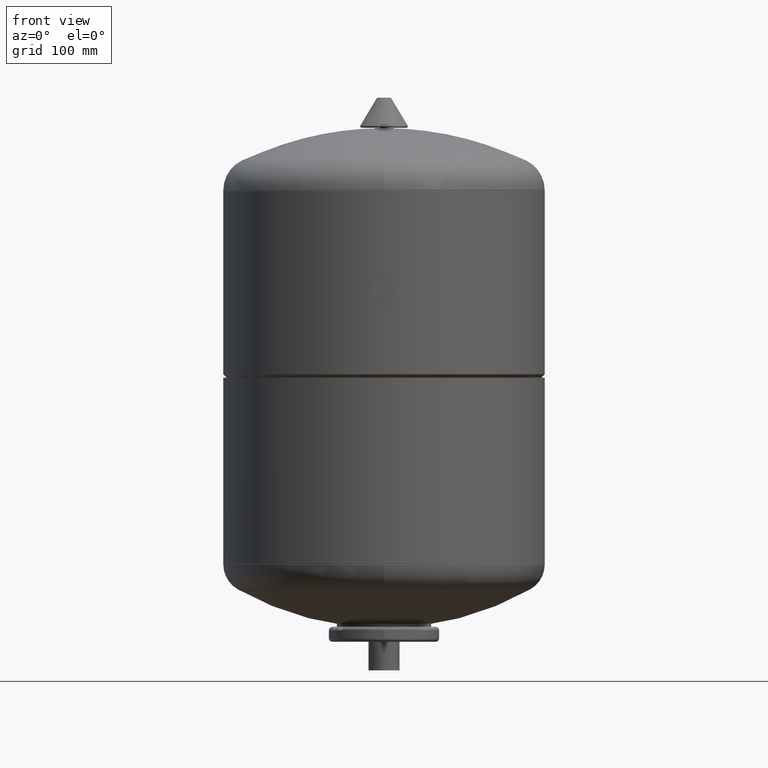
[diagram: clean part render]
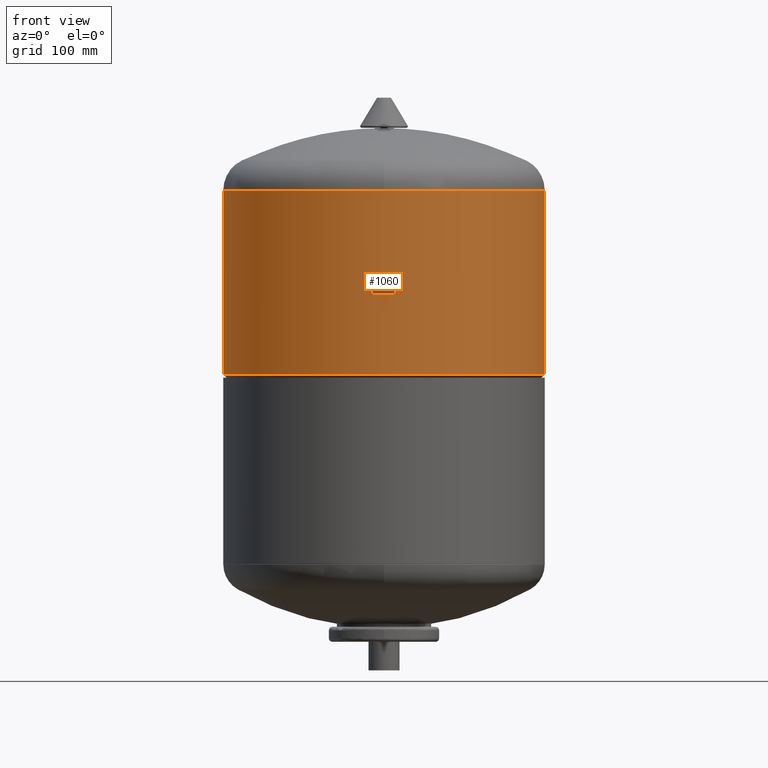
[diagram: same view with one face highlighted and labeled with its STEP entity id]
A machine part, front view. The second image highlights one B-rep face of the part: STEP entity #1060.
In plain terms, the highlighted cylindrical surface (partial cylindrical patch) has radius 140 mm, axis along (0, 0, 1).
Its self-contained STEP definition (entity closure, byte-faithful):
#950=CARTESIAN_POINT('',(140.0,0.0,258.0));
#951=VERTEX_POINT('',#950);
#960=CARTESIAN_POINT('',(-140.0,-1.714449E-014,258.0));
#961=VERTEX_POINT('',#960);
#962=CARTESIAN_POINT('',(0.0,0.0,258.0));
#963=DIRECTION('',(0.0,0.0,1.0));
#964=DIRECTION('',(1.0,0.0,0.0));
#965=AXIS2_PLACEMENT_3D('',#962,#963,#964);
#966=CIRCLE('',#965,140.0);
#967=EDGE_CURVE('',#961,#951,#966,.T.);
#1029=CARTESIAN_POINT('',(0.0,0.0,338.250000000000060));
#1030=DIRECTION('',(0.0,0.0,1.0));
#1031=DIRECTION('',(1.0,0.0,0.0));
#1032=AXIS2_PLACEMENT_3D('',#1029,#1030,#1031);
#1033=CYLINDRICAL_SURFACE('',#1032,140.0);
#1034=CARTESIAN_POINT('',(140.0,0.0,418.000000000000060));
#1035=VERTEX_POINT('',#1034);
#1036=CARTESIAN_POINT('',(140.0,0.0,418.000000000000060));
#1037=DIRECTION('',(0.0,0.0,-1.0));
#1038=VECTOR('',#1037,160.000000000000060);
#1039=LINE('',#1036,#1038);
#1040=EDGE_CURVE('',#1035,#951,#1039,.T.);
#1041=ORIENTED_EDGE('',*,*,#1040,.F.);
#1042=CARTESIAN_POINT('',(-140.0,-1.714449E-014,418.000000000000060));
#1043=VERTEX_POINT('',#1042);
#1044=CARTESIAN_POINT('',(0.0,0.0,418.000000000000060));
#1045=DIRECTION('',(0.0,0.0,1.0));
#1046=DIRECTION('',(1.0,0.0,0.0));
#1047=AXIS2_PLACEMENT_3D('',#1044,#1045,#1046);
#1048=CIRCLE('',#1047,140.0);
#1049=EDGE_CURVE('',#1043,#1035,#1048,.T.);
#1050=ORIENTED_EDGE('',*,*,#1049,.F.);
#1051=CARTESIAN_POINT('',(-140.0,-1.714449E-014,418.000000000000060));
#1052=DIRECTION('',(0.0,0.0,-1.0));
#1053=VECTOR('',#1052,160.000000000000060);
#1054=LINE('',#1051,#1053);
#1055=EDGE_CURVE('',#1043,#961,#1054,.T.);
#1056=ORIENTED_EDGE('',*,*,#1055,.T.);
#1057=ORIENTED_EDGE('',*,*,#967,.T.);
#1058=EDGE_LOOP('',(#1041,#1050,#1056,#1057));
#1059=FACE_OUTER_BOUND('',#1058,.T.);
#1060=ADVANCED_FACE('',(#1059),#1033,.T.);